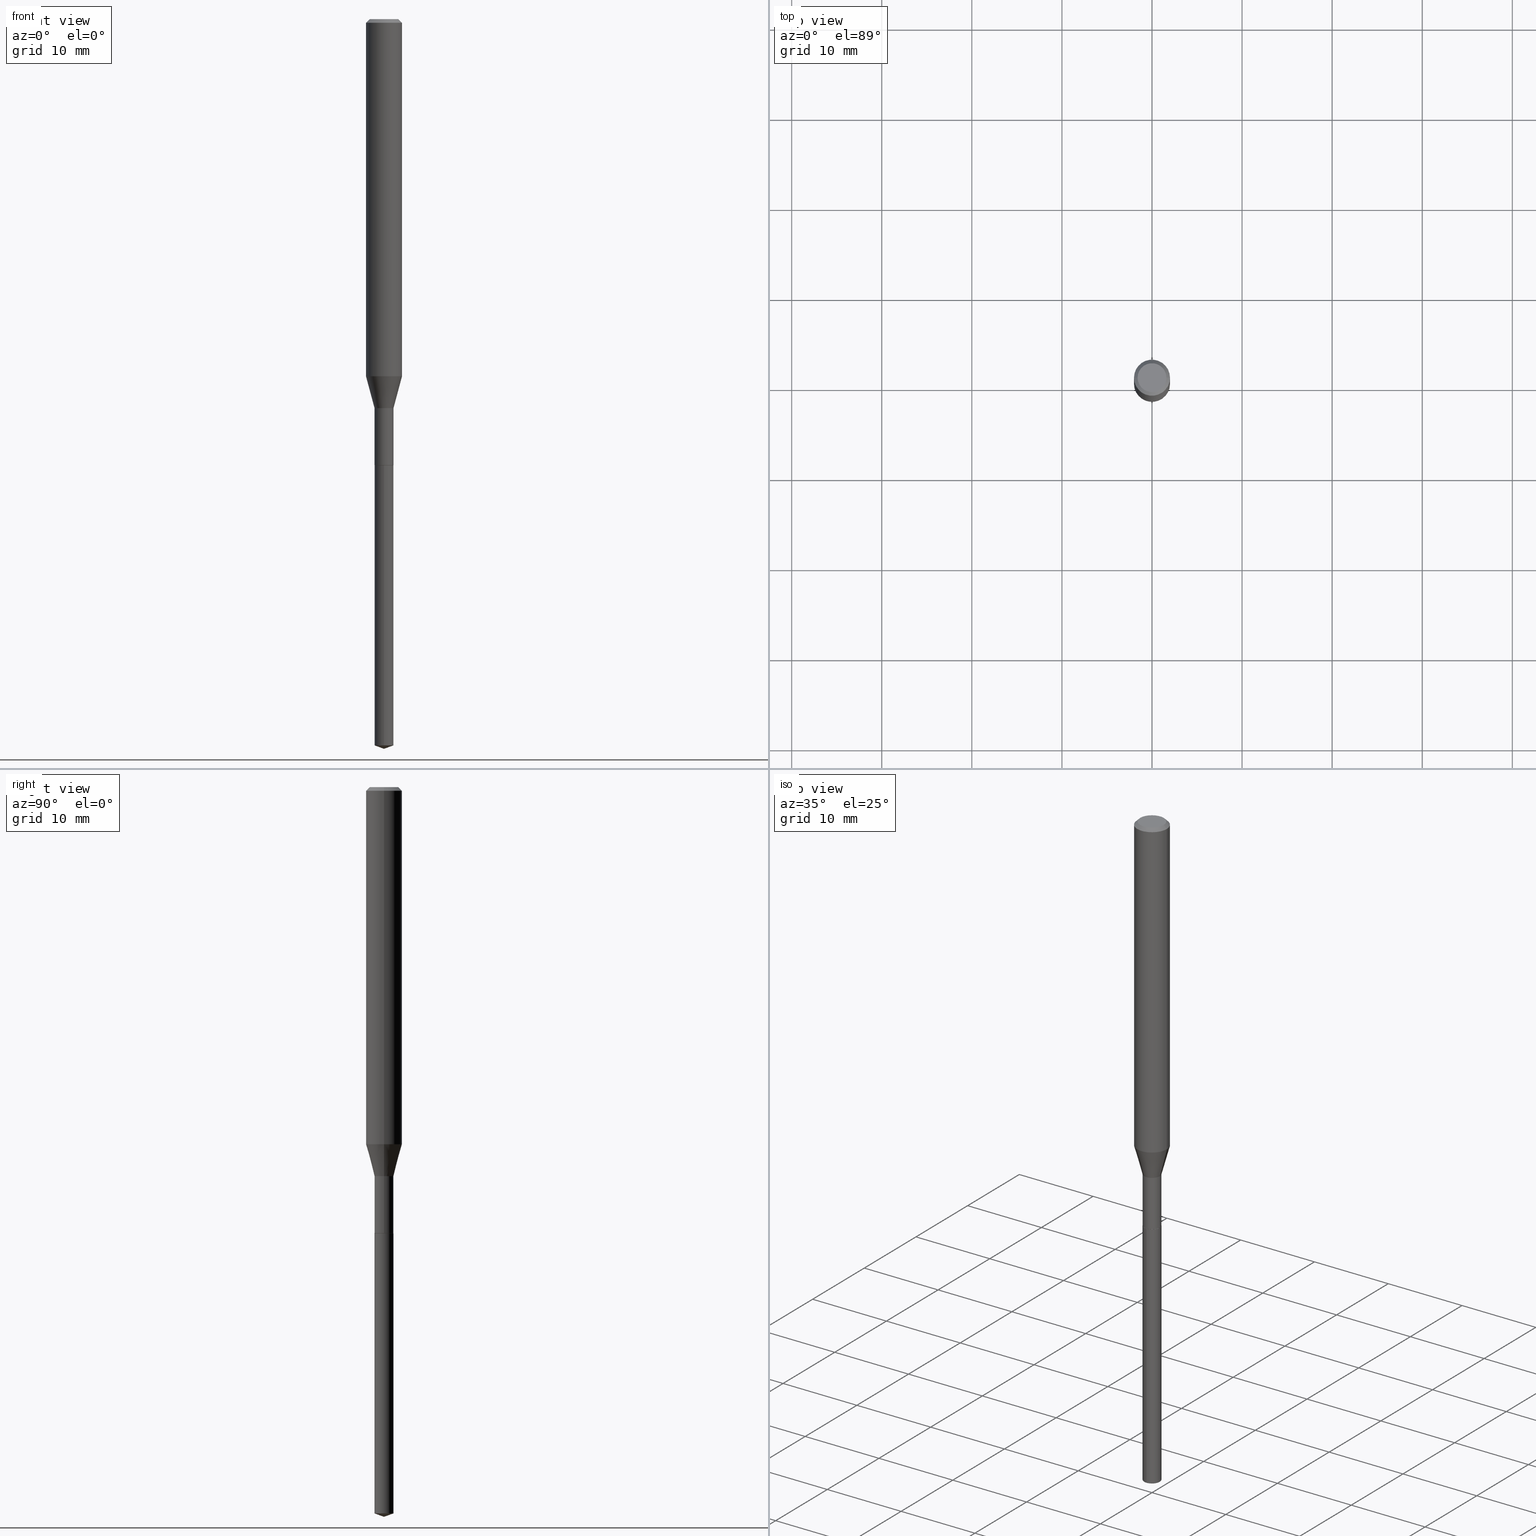
[diagram: canonical four-view strip — front | top / right | iso, engineering-drawing reading convention]
A machine part, canonical four-view strip (front | top / right | iso — engineering-drawing reading convention). The complete STEP part file that produces these views, byte-faithful:
ISO-10303-21;
HEADER;
FILE_DESCRIPTION (( 'STEP AP203' ),
    '1' );
FILE_NAME ('06042.STEP',
    '2024-04-23T19:07:26',
    ( '' ),
    ( '' ),
    'SwSTEP 2.0',
    'SolidWorks 2023',
    '' );
FILE_SCHEMA (( 'CONFIG_CONTROL_DESIGN' ));
ENDSEC;

DATA;
#1 = ORIENTED_EDGE ( 'NONE', *, *, #486, .T. ) ;
#2 = DIRECTION ( 'NONE',  ( 0.000000000000000000, 0.000000000000000000, 1.000000000000000000 ) ) ;
#3 = DIRECTION ( 'NONE',  ( -6.982962677686265922E-15, -1.000000000000000000, 3.475157955500644878E-15 ) ) ;
#4 = ORIENTED_EDGE ( 'NONE', *, *, #266, .T. ) ;
#5 = CARTESIAN_POINT ( 'NONE',  ( -0.07875000000000000056, -2.192383083753355397E-15, -0.01575000000000009032 ) ) ;
#6 = CARTESIAN_POINT ( 'NONE',  ( 4.157786064275970008E-29, -5.936216572301117394E-15, -1.700200000000000378 ) ) ;
#7 = CALENDAR_DATE ( 2024, 23, 4 ) ;
#8 = FACE_OUTER_BOUND ( 'NONE', #326, .T. ) ;
#9 = DIRECTION ( 'NONE',  ( -1.000000000000000000, 6.982962677686265922E-15, 0.000000000000000000 ) ) ;
#10 = DIRECTION ( 'NONE',  ( 1.000000000000000000, -6.982962677686255667E-15, 0.000000000000000000 ) ) ;
#11 = APPROVAL_PERSON_ORGANIZATION ( #459, #101, #311 ) ;
#12 = CALENDAR_DATE ( 2024, 23, 4 ) ;
#13 = EDGE_CURVE ( 'NONE', #178, #70, #200, .T. ) ;
#14 = ORIENTED_EDGE ( 'NONE', *, *, #95, .T. ) ;
#15 = DIRECTION ( 'NONE',  ( -2.445468806185136597E-29, 3.491481338843145583E-15, 1.000000000000000000 ) ) ;
#16 = DATE_AND_TIME ( #350, #415 ) ;
#17 = AXIS2_PLACEMENT_3D ( 'NONE', #294, #300, #383 ) ;
#18 = PERSON_AND_ORGANIZATION ( #239, #187 ) ;
#19 = AXIS2_PLACEMENT_3D ( 'NONE', #83, #225, #10 ) ;
#20 = PERSON_AND_ORGANIZATION_ROLE ( 'creator' ) ;
#21 = DIRECTION ( 'NONE',  ( 1.000000000000000000, -6.982962677686261189E-15, 0.000000000000000000 ) ) ;
#22 = CYLINDRICAL_SURFACE ( 'NONE', #453, 0.04134999999999999787 ) ;
#23 = VECTOR ( 'NONE', #175, 39.37007874015748143 ) ;
#24 = AXIS2_PLACEMENT_3D ( 'NONE', #261, #31, #315 ) ;
#25 = PRODUCT_RELATED_PRODUCT_CATEGORY ( 'detail', '', ( #285 ) ) ;
#26 = ORIENTED_EDGE ( 'NONE', *, *, #394, .F. ) ;
#27 = LINE ( 'NONE', #249, #23 ) ;
#28 = ORIENTED_EDGE ( 'NONE', *, *, #180, .F. ) ;
#29 = ADVANCED_FACE ( 'NONE', ( #51 ), #63, .T. ) ;
#30 = AXIS2_PLACEMENT_3D ( 'NONE', #234, #457, #163 ) ;
#31 = DIRECTION ( 'NONE',  ( 2.445493315655774085E-29, -3.491446239886199963E-15, -1.000000000000000000 ) ) ;
#32 = CC_DESIGN_APPROVAL ( #101, ( #143 ) ) ;
#33 = EDGE_LOOP ( 'NONE', ( #263, #404, #53, #209 ) ) ;
#34 = ORIENTED_EDGE ( 'NONE', *, *, #215, .T. ) ;
#35 = CARTESIAN_POINT ( 'NONE',  ( 0.04134999999999996317, -6.224962079023443550E-15, -1.700200000000000378 ) ) ;
#36 = DIRECTION ( 'NONE',  ( 1.000000000000000000, -6.982962677686265922E-15, 4.875905316334701673E-29 ) ) ;
#37 = FACE_OUTER_BOUND ( 'NONE', #250, .T. ) ;
#38 = CC_DESIGN_APPROVAL ( #405, ( #371 ) ) ;
#39 = ORIENTED_EDGE ( 'NONE', *, *, #466, .F. ) ;
#40 = CARTESIAN_POINT ( 'NONE',  ( 4.765729609493595098E-29, -6.804198833137522889E-15, -1.948800000000000310 ) ) ;
#41 = DIRECTION ( 'NONE',  ( -2.445468806185136877E-29, 3.491481338843145188E-15, 1.000000000000000000 ) ) ;
#42 = LINE ( 'NONE', #428, #96 ) ;
#43 = DIRECTION ( 'NONE',  ( -6.982962677686265922E-15, -1.000000000000000000, 0.000000000000000000 ) ) ;
#44 = EDGE_CURVE ( 'NONE', #207, #292, #348, .T. ) ;
#45 = EDGE_LOOP ( 'NONE', ( #157, #265, #303, #191 ) ) ;
#46 = CARTESIAN_POINT ( 'NONE',  ( -2.887455067222493906E-16, -0.04135000000001107234, -3.173949830813093342 ) ) ;
#47 = DIRECTION ( 'NONE',  ( -2.445468806185136597E-29, 3.491481338843145583E-15, 1.000000000000000000 ) ) ;
#48 = ORIENTED_EDGE ( 'NONE', *, *, #248, .F. ) ;
#49 = VECTOR ( 'NONE', #85, 39.37007874015747433 ) ;
#50 = AXIS2_PLACEMENT_3D ( 'NONE', #258, #223, #376 ) ;
#51 = FACE_OUTER_BOUND ( 'NONE', #361, .T. ) ;
#52 = EDGE_CURVE ( 'NONE', #328, #207, #483, .T. ) ;
#53 = ORIENTED_EDGE ( 'NONE', *, *, #456, .T. ) ;
#54 = PERSON_AND_ORGANIZATION_ROLE ( 'classification_officer' ) ;
#55 = APPROVAL_STATUS ( 'not_yet_approved' ) ;
#56 = AXIS2_PLACEMENT_3D ( 'NONE', #115, #146, #75 ) ;
#57 = APPROVAL_STATUS ( 'not_yet_approved' ) ;
#58 = AXIS2_PLACEMENT_3D ( 'NONE', #435, #129, #99 ) ;
#59 = ADVANCED_FACE ( 'NONE', ( #164 ), #277, .T. ) ;
#60 = EDGE_CURVE ( 'NONE', #287, #292, #255, .T. ) ;
#61 = CARTESIAN_POINT ( 'NONE',  ( 0.000000000000000000, 0.000000000000000000, 0.000000000000000000 ) ) ;
#62 = DIRECTION ( 'NONE',  ( -2.445493315655774366E-29, 3.491446239886199963E-15, 1.000000000000000000 ) ) ;
#63 = CYLINDRICAL_SURFACE ( 'NONE', #398, 0.07875000000000009770 ) ;
#64 = ADVANCED_FACE ( 'NONE', ( #337 ), #238, .T. ) ;
#65 = CARTESIAN_POINT ( 'NONE',  ( -2.887455067222794166E-16, -0.04135000000000680492, -1.948800000000000088 ) ) ;
#66 = VECTOR ( 'NONE', #160, 39.37007874015748854 ) ;
#67 = DIRECTION ( 'NONE',  ( -6.561838499445217418E-15, -0.9396926207859097602, 0.3420201433256645496 ) ) ;
#68 = EDGE_CURVE ( 'NONE', #78, #292, #246, .T. ) ;
#69 = DIRECTION ( 'NONE',  ( 1.000000000000000000, -6.982962677686267499E-15, 4.876176775795936353E-29 ) ) ;
#70 = VERTEX_POINT ( 'NONE', #298 ) ;
#71 = CLOSED_SHELL ( 'NONE', ( #111, #443, #59, #288, #198, #77, #471, #29, #64, #84, #145, #168 ) ) ;
#72 = SECURITY_CLASSIFICATION ( '', '', #279 ) ;
#73 = CARTESIAN_POINT ( 'NONE',  ( 0.04134999999999997011, -2.887455067223269455E-16, 2.016299096791618234E-30 ) ) ;
#74 = APPLICATION_CONTEXT ( 'configuration controlled 3d designs of mechanical parts and assemblies' ) ;
#75 = DIRECTION ( 'NONE',  ( -1.000000000000000000, 6.982962677686265922E-15, -4.876176775795935793E-29 ) ) ;
#76 = DIRECTION ( 'NONE',  ( 1.000000000000000000, 0.000000000000000000, 0.000000000000000000 ) ) ;
#77 = ADVANCED_FACE ( 'NONE', ( #487 ), #370, .T. ) ;
#78 = VERTEX_POINT ( 'NONE', #5 ) ;
#79 = FACE_OUTER_BOUND ( 'NONE', #270, .T. ) ;
#80 = VERTEX_POINT ( 'NONE', #46 ) ;
#81 = FACE_OUTER_BOUND ( 'NONE', #417, .T. ) ;
#82 = CIRCLE ( 'NONE', #19, 0.04134999999999996317 ) ;
#83 = CARTESIAN_POINT ( 'NONE',  ( 4.157786064275970008E-29, -5.936216572301117394E-15, -1.700200000000000378 ) ) ;
#84 = ADVANCED_FACE ( 'NONE', ( #79 ), #449, .F. ) ;
#85 = DIRECTION ( 'NONE',  ( -0.2588190451025213501, 5.211531920934551042E-15, 0.9659258262890682012 ) ) ;
#86 = CARTESIAN_POINT ( 'NONE',  ( 3.851613369741612172E-31, -5.499083108677985842E-17, -0.01575000000000009032 ) ) ;
#87 = VERTEX_POINT ( 'NONE', #220 ) ;
#88 = CARTESIAN_POINT ( 'NONE',  ( -0.07875000000000009770, 5.595524044110795906E-16, -3.873661383575743397E-30 ) ) ;
#89 = ORIENTED_EDGE ( 'NONE', *, *, #355, .T. ) ;
#90 = DIRECTION ( 'NONE',  ( 1.000000000000000000, -6.982962677686265922E-15, 0.000000000000000000 ) ) ;
#91 = CONICAL_SURFACE ( 'NONE', #151, 0.04134999999999996317, 0.2617993877991500740 ) ;
#92 = DIRECTION ( 'NONE',  ( 2.445468806185136597E-29, -3.491481338843145583E-15, -1.000000000000000000 ) ) ;
#93 = DIRECTION ( 'NONE',  ( 6.676917655467987062E-15, 0.9396926207859123137, 0.3420201433256580548 ) ) ;
#94 = DATE_TIME_ROLE ( 'classification_date' ) ;
#95 = EDGE_CURVE ( 'NONE', #287, #331, #477, .T. ) ;
#96 = VECTOR ( 'NONE', #413, 39.37007874015748143 ) ;
#97 = CC_DESIGN_APPROVAL ( #116, ( #72 ) ) ;
#98 = DIRECTION ( 'NONE',  ( -2.445493315655774085E-29, 3.491446239886199963E-15, 1.000000000000000000 ) ) ;
#99 = DIRECTION ( 'NONE',  ( -6.982962677686265922E-15, -1.000000000000000000, 3.475157955500644878E-15 ) ) ;
#100 = DIRECTION ( 'NONE',  ( -6.982962677686265922E-15, -1.000000000000000000, 6.606645692053841341E-15 ) ) ;
#101 = APPROVAL ( #194, 'UNSPECIFIED' ) ;
#102 = CARTESIAN_POINT ( 'NONE',  ( 4.765729609493595098E-29, -6.804198833137522889E-15, -1.948800000000000310 ) ) ;
#103 = EDGE_LOOP ( 'NONE', ( #378, #439, #458, #444 ) ) ;
#104 = PERSON_AND_ORGANIZATION_ROLE ( 'design_owner' ) ;
#105 = PRODUCT_DEFINITION_SHAPE ( 'NONE', 'NONE',  #371 ) ;
#106 = ORIENTED_EDGE ( 'NONE', *, *, #44, .T. ) ;
#107 = DIRECTION ( 'NONE',  ( -2.445493315655774085E-29, 3.491446239886199963E-15, 1.000000000000000000 ) ) ;
#108 = ORIENTED_EDGE ( 'NONE', *, *, #422, .T. ) ;
#109 = LINE ( 'NONE', #409, #359 ) ;
#110 = ORIENTED_EDGE ( 'NONE', *, *, #456, .F. ) ;
#111 = ADVANCED_FACE ( 'NONE', ( #8 ), #441, .T. ) ;
#112 = ORIENTED_EDGE ( 'NONE', *, *, #60, .F. ) ;
#113 = DIRECTION ( 'NONE',  ( 1.000000000000000000, -6.982962677686275388E-15, 0.000000000000000000 ) ) ;
#114 = CONICAL_SURFACE ( 'NONE', #208, 108.1684023407358097, 1.221730476396038600 ) ;
#115 = CARTESIAN_POINT ( 'NONE',  ( 4.713871149261278955E-47, -6.730158695841834933E-33, -1.927594061857933439E-18 ) ) ;
#116 = APPROVAL ( #57, 'UNSPECIFIED' ) ;
#117 = CARTESIAN_POINT ( 'NONE',  ( -0.04134999999999996317, -6.075525411147807978E-15, -1.700200000000000378 ) ) ;
#118 = DIRECTION ( 'NONE',  ( 0.7071067811865454633, -7.319954787623246579E-15, -0.7071067811865493491 ) ) ;
#119 = CARTESIAN_POINT ( 'NONE',  ( 0.07875000000000000056, -6.048991419545733705E-16, -0.01575000000000009032 ) ) ;
#120 = ORIENTED_EDGE ( 'NONE', *, *, #13, .T. ) ;
#121 = EDGE_CURVE ( 'NONE', #244, #328, #154, .T. ) ;
#122 = PLANE ( 'NONE',  #24 ) ;
#123 = CARTESIAN_POINT ( 'NONE',  ( 3.851613369741612172E-31, -5.499083108677985842E-17, -0.01575000000000009032 ) ) ;
#124 = LOCAL_TIME ( 15, 7, 26.00000000000000000, #137 ) ;
#125 = LINE ( 'NONE', #346, #66 ) ;
#126 = ORIENTED_EDGE ( 'NONE', *, *, #377, .F. ) ;
#127 = CARTESIAN_POINT ( 'NONE',  ( -0.04134999999999996317, -5.642407151064315982E-15, -1.700200000000000378 ) ) ;
#128 = ORIENTED_EDGE ( 'NONE', *, *, #401, .T. ) ;
#129 = DIRECTION ( 'NONE',  ( -2.445493315655774366E-29, 3.491446239886199963E-15, 1.000000000000000000 ) ) ;
#130 = AXIS2_PLACEMENT_3D ( 'NONE', #317, #235, #100 ) ;
#131 = AXIS2_PLACEMENT_3D ( 'NONE', #301, #2, #76 ) ;
#132 = ORIENTED_EDGE ( 'NONE', *, *, #341, .T. ) ;
#133 = DIRECTION ( 'NONE',  ( -2.445468806185136597E-29, 3.491481338843145583E-15, 1.000000000000000000 ) ) ;
#134 = COORDINATED_UNIVERSAL_TIME_OFFSET ( 5, 0, .BEHIND. ) ;
#135 = DIRECTION ( 'NONE',  ( -2.445468806185136597E-29, 3.491481338843145583E-15, 1.000000000000000000 ) ) ;
#136 = EDGE_CURVE ( 'NONE', #207, #328, #321, .T. ) ;
#137 = COORDINATED_UNIVERSAL_TIME_OFFSET ( 5, 0, .BEHIND. ) ;
#138 = PERSON_AND_ORGANIZATION ( #239, #187 ) ;
#139 = CIRCLE ( 'NONE', #260, 0.06300000000000000044 ) ;
#140 = CARTESIAN_POINT ( 'NONE',  ( 4.765729609493595098E-29, -6.804198833137522889E-15, -1.948800000000000310 ) ) ;
#141 = CARTESIAN_POINT ( 'NONE',  ( 4.765729609493595098E-29, -6.804198833137522889E-15, -1.948800000000000310 ) ) ;
#142 = ORIENTED_EDGE ( 'NONE', *, *, #136, .T. ) ;
#143 = PRODUCT_DEFINITION_FORMATION_WITH_SPECIFIED_SOURCE ( 'ANY', '', #285, .NOT_KNOWN. ) ;
#144 = CARTESIAN_POINT ( 'NONE',  ( 7.798582655513506422E-29, -1.113435886069168424E-14, -3.189000000000000501 ) ) ;
#145 = ADVANCED_FACE ( 'NONE', ( #81 ), #460, .F. ) ;
#146 = DIRECTION ( 'NONE',  ( 2.438088387897960049E-29, -3.491481338843145188E-15, -1.000000000000000000 ) ) ;
#147 = EDGE_LOOP ( 'NONE', ( #454, #1, #4, #189 ) ) ;
#148 = CC_DESIGN_PERSON_AND_ORGANIZATION_ASSIGNMENT ( #349, #104, ( #285 ) ) ;
#149 = ORIENTED_EDGE ( 'NONE', *, *, #401, .F. ) ;
#150 = AXIS2_PLACEMENT_3D ( 'NONE', #430, #15, #240 ) ;
#151 = AXIS2_PLACEMENT_3D ( 'NONE', #6, #155, #221 ) ;
#152 = ORIENTED_EDGE ( 'NONE', *, *, #341, .F. ) ;
#153 = EDGE_CURVE ( 'NONE', #169, #87, #42, .T. ) ;
#154 = LINE ( 'NONE', #127, #49 ) ;
#155 = DIRECTION ( 'NONE',  ( -2.445468806185136597E-29, 3.491481338843145583E-15, 1.000000000000000000 ) ) ;
#156 = FACE_OUTER_BOUND ( 'NONE', #33, .T. ) ;
#157 = ORIENTED_EDGE ( 'NONE', *, *, #304, .T. ) ;
#158 = AXIS2_PLACEMENT_3D ( 'NONE', #482, #281, #437 ) ;
#159 = CC_DESIGN_SECURITY_CLASSIFICATION ( #72, ( #143 ) ) ;
#160 = DIRECTION ( 'NONE',  ( -0.7071067811865454633, 2.468850131082235761E-15, -0.7071067811865493491 ) ) ;
#161 = VERTEX_POINT ( 'NONE', #237 ) ;
#162 = UNCERTAINTY_MEASURE_WITH_UNIT (LENGTH_MEASURE( 1.000000000000000082E-05 ), #340, 'distance_accuracy_value', 'NONE');
#163 = DIRECTION ( 'NONE',  ( 1.000000000000000000, -6.982962677686269077E-15, 0.000000000000000000 ) ) ;
#164 = FACE_OUTER_BOUND ( 'NONE', #343, .T. ) ;
#165 = PERSON_AND_ORGANIZATION ( #239, #187 ) ;
#166 = VECTOR ( 'NONE', #107, 39.37007874015748143 ) ;
#167 = DATE_AND_TIME ( #12, #314 ) ;
#168 = ADVANCED_FACE ( 'NONE', ( #418 ), #447, .T. ) ;
#169 = VERTEX_POINT ( 'NONE', #214 ) ;
#170 = LINE ( 'NONE', #396, #166 ) ;
#171 = AXIS2_PLACEMENT_3D ( 'NONE', #267, #464, #423 ) ;
#172 = DIRECTION ( 'NONE',  ( 1.000000000000000000, -6.982962677686261189E-15, 0.000000000000000000 ) ) ;
#173 = CONICAL_SURFACE ( 'NONE', #58, 108.1684023407358097, 1.221730476396038600 ) ;
#174 = ORIENTED_EDGE ( 'NONE', *, *, #153, .T. ) ;
#175 = DIRECTION ( 'NONE',  ( -2.445468806185136877E-29, 3.491481338843145188E-15, 1.000000000000000000 ) ) ;
#176 = EDGE_LOOP ( 'NONE', ( #488, #445, #126 ) ) ;
#177 = DIRECTION ( 'NONE',  ( -2.445493315655774366E-29, 3.491446239886199963E-15, 1.000000000000000000 ) ) ;
#178 = VERTEX_POINT ( 'NONE', #65 ) ;
#179 = VECTOR ( 'NONE', #278, 39.37007874015748143 ) ;
#180 = EDGE_CURVE ( 'NONE', #368, #70, #170, .T. ) ;
#181 = VECTOR ( 'NONE', #93, 39.37007874015748143 ) ;
#182 = EDGE_CURVE ( 'NONE', #80, #178, #358, .T. ) ;
#183 = ORIENTED_EDGE ( 'NONE', *, *, #136, .F. ) ;
#184 =( NAMED_UNIT ( * ) SI_UNIT ( $, .STERADIAN. ) SOLID_ANGLE_UNIT ( ) );
#185 = CC_DESIGN_PERSON_AND_ORGANIZATION_ASSIGNMENT ( #165, #54, ( #72 ) ) ;
#186 = DIRECTION ( 'NONE',  ( 1.000000000000000000, -6.982962677686261189E-15, 0.000000000000000000 ) ) ;
#187 = ORGANIZATION ( 'UNSPECIFIED', 'UNSPECIFIED', '' ) ;
#188 = CARTESIAN_POINT ( 'NONE',  ( 3.851613369741612172E-31, -5.499083108677985842E-17, -0.01575000000000009032 ) ) ;
#189 = ORIENTED_EDGE ( 'NONE', *, *, #429, .F. ) ;
#190 = DIRECTION ( 'NONE',  ( -2.445468806185136597E-29, 3.491481338843145583E-15, 1.000000000000000000 ) ) ;
#191 = ORIENTED_EDGE ( 'NONE', *, *, #266, .F. ) ;
#192 = AXIS2_PLACEMENT_3D ( 'NONE', #412, #420, #9 ) ;
#193 = CONICAL_SURFACE ( 'NONE', #330, 0.07875000000000000056, 0.7853981633974456145 ) ;
#194 = APPROVAL_STATUS ( 'not_yet_approved' ) ;
#195 = CC_DESIGN_DATE_AND_TIME_ASSIGNMENT ( #16, #94, ( #72 ) ) ;
#196 = CARTESIAN_POINT ( 'NONE',  ( 7.798679021295051767E-29, -1.113422205899709365E-14, -3.189000000000000501 ) ) ;
#197 = CALENDAR_DATE ( 2024, 23, 4 ) ;
#198 = ADVANCED_FACE ( 'NONE', ( #211 ), #243, .T. ) ;
#199 = AXIS2_PLACEMENT_3D ( 'NONE', #188, #407, #342 ) ;
#200 = CIRCLE ( 'NONE', #130, 0.04134999999999999787 ) ;
#201 = CIRCLE ( 'NONE', #262, 0.04084999999999999742 ) ;
#202 = APPROVAL_DATE_TIME ( #242, #116 ) ;
#203 = CARTESIAN_POINT ( 'NONE',  ( -0.06300000000000000044, 4.674220642376242452E-16, -3.855188123719040041E-18 ) ) ;
#204 = DIRECTION ( 'NONE',  ( -2.445468806185136597E-29, 3.491481338843145583E-15, 1.000000000000000000 ) ) ;
#205 = APPROVAL_DATE_TIME ( #410, #101 ) ;
#206 = FACE_OUTER_BOUND ( 'NONE', #400, .T. ) ;
#207 = VERTEX_POINT ( 'NONE', #320 ) ;
#208 = AXIS2_PLACEMENT_3D ( 'NONE', #291, #299, #3 ) ;
#209 = ORIENTED_EDGE ( 'NONE', *, *, #422, .F. ) ;
#210 = MANIFOLD_SOLID_BREP ( 'Body-Move/Copy2[1]', #345 ) ;
#211 = FACE_OUTER_BOUND ( 'NONE', #45, .T. ) ;
#212 = ORIENTED_EDGE ( 'NONE', *, *, #304, .F. ) ;
#213 = EDGE_LOOP ( 'NONE', ( #406, #307, #472, #366 ) ) ;
#214 = CARTESIAN_POINT ( 'NONE',  ( 0.04084999999999999742, -7.089452858521006827E-15, -1.948800000000000310 ) ) ;
#215 = EDGE_CURVE ( 'NONE', #70, #178, #251, .T. ) ;
#216 = ORIENTED_EDGE ( 'NONE', *, *, #353, .T. ) ;
#217 = ADVANCED_FACE ( 'NONE', ( #284 ), #365, .T. ) ;
#218 = FACE_OUTER_BOUND ( 'NONE', #462, .T. ) ;
#219 = EDGE_CURVE ( 'NONE', #419, #80, #440, .T. ) ;
#220 = CARTESIAN_POINT ( 'NONE',  ( 0.04134999999999998399, -7.091198599190429120E-15, -1.948300000000000365 ) ) ;
#221 = DIRECTION ( 'NONE',  ( 1.000000000000000000, -6.982962677686255667E-15, 0.000000000000000000 ) ) ;
#222 = CARTESIAN_POINT ( 'NONE',  ( 9.427742298522557911E-47, -1.346031739168366987E-32, -3.855188123715866879E-18 ) ) ;
#223 = DIRECTION ( 'NONE',  ( -2.445468806185136597E-29, 3.491481338843145583E-15, 1.000000000000000000 ) ) ;
#224 = CIRCLE ( 'NONE', #442, 0.04134999999999996317 ) ;
#225 = DIRECTION ( 'NONE',  ( -2.445468806185136597E-29, 3.491481338843145583E-15, 1.000000000000000000 ) ) ;
#226 = ORIENTED_EDGE ( 'NONE', *, *, #121, .T. ) ;
#227 = DIRECTION ( 'NONE',  ( -2.445468806185136597E-29, 3.491481338843145583E-15, 1.000000000000000000 ) ) ;
#228 = DIRECTION ( 'NONE',  ( -2.445493315655774366E-29, 3.491446239886199963E-15, 1.000000000000000000 ) ) ;
#229 = ORIENTED_EDGE ( 'NONE', *, *, #364, .F. ) ;
#230 = EDGE_CURVE ( 'NONE', #231, #244, #27, .T. ) ;
#231 = VERTEX_POINT ( 'NONE', #399 ) ;
#232 = EDGE_CURVE ( 'NONE', #385, #207, #302, .T. ) ;
#233 = AXIS2_PLACEMENT_3D ( 'NONE', #140, #177, #481 ) ;
#234 = CARTESIAN_POINT ( 'NONE',  ( 3.816450706921478989E-29, -5.448880145242093007E-15, -1.560621299796923767 ) ) ;
#235 = DIRECTION ( 'NONE',  ( -2.445493315655774366E-29, 3.491446239886199963E-15, 1.000000000000000000 ) ) ;
#236 = SHAPE_DEFINITION_REPRESENTATION ( #105, #490 ) ;
#237 = CARTESIAN_POINT ( 'NONE',  ( -0.04084999999999999742, -6.511292898405410386E-15, -1.948800000000000310 ) ) ;
#238 = CONICAL_SURFACE ( 'NONE', #192, 0.07875000000000000056, 0.7853981633974456145 ) ;
#239 = PERSON ( 'UNSPECIFIED', 'UNSPECIFIED', 'UNSPECIFIED', ('UNSPECIFIED'), ('UNSPECIFIED'), ('UNSPECIFIED') ) ;
#240 = DIRECTION ( 'NONE',  ( 1.000000000000000000, -6.982962677686269077E-15, 0.000000000000000000 ) ) ;
#241 = DESIGN_CONTEXT ( 'detailed design', #297, 'design' ) ;
#242 = DATE_AND_TIME ( #431, #124 ) ;
#243 = CYLINDRICAL_SURFACE ( 'NONE', #286, 0.04134999999999997011 ) ;
#244 = VERTEX_POINT ( 'NONE', #117 ) ;
#245 = APPLICATION_PROTOCOL_DEFINITION ( 'international standard', 'config_control_design', 1994, #297 ) ;
#246 = CIRCLE ( 'NONE', #199, 0.07875000000000000056 ) ;
#247 = LOCAL_TIME ( 15, 7, 26.00000000000000000, #134 ) ;
#248 = EDGE_CURVE ( 'NONE', #161, #231, #109, .T. ) ;
#249 = CARTESIAN_POINT ( 'NONE',  ( -0.04134999999999997011, 2.938094212368012145E-16, -2.033979659820402051E-30 ) ) ;
#250 = EDGE_LOOP ( 'NONE', ( #229, #363, #39 ) ) ;
#251 = CIRCLE ( 'NONE', #233, 0.04134999999999999787 ) ;
#252 = ORIENTED_EDGE ( 'NONE', *, *, #353, .F. ) ;
#253 = CIRCLE ( 'NONE', #295, 0.04084999999999999742 ) ;
#254 = DIRECTION ( 'NONE',  ( -0.7071067811866078578, 7.493145998870571886E-15, 0.7071067811864871766 ) ) ;
#255 = LINE ( 'NONE', #257, #467 ) ;
#256 = LENGTH_MEASURE_WITH_UNIT ( LENGTH_MEASURE( 0.02539999999999999897 ), #296 );
#257 = CARTESIAN_POINT ( 'NONE',  ( 0.07875000000000000056, -5.952550484112880131E-16, -0.01575000000000009032 ) ) ;
#258 = CARTESIAN_POINT ( 'NONE',  ( 4.764506875090502296E-29, -6.802453092468101385E-15, -1.948300000000000365 ) ) ;
#259 = DIRECTION ( 'NONE',  ( -2.445468806185136597E-29, 3.491481338843145583E-15, 1.000000000000000000 ) ) ;
#260 = AXIS2_PLACEMENT_3D ( 'NONE', #271, #356, #390 ) ;
#261 = CARTESIAN_POINT ( 'NONE',  ( 4.765729609493595098E-29, -6.804198833137522889E-15, -1.948800000000000310 ) ) ;
#262 = AXIS2_PLACEMENT_3D ( 'NONE', #102, #438, #172 ) ;
#263 = ORIENTED_EDGE ( 'NONE', *, *, #95, .F. ) ;
#264 = MECHANICAL_CONTEXT ( 'NONE', #74, 'mechanical' ) ;
#265 = ORIENTED_EDGE ( 'NONE', *, *, #230, .T. ) ;
#266 = EDGE_CURVE ( 'NONE', #87, #385, #489, .T. ) ;
#267 = CARTESIAN_POINT ( 'NONE',  ( 4.765729609493595098E-29, -6.804198833137522889E-15, -1.948800000000000310 ) ) ;
#268 = DIRECTION ( 'NONE',  ( 1.000000000000000000, -6.982962677686255667E-15, 0.000000000000000000 ) ) ;
#269 = EDGE_LOOP ( 'NONE', ( #120, #34 ) ) ;
#270 = EDGE_LOOP ( 'NONE', ( #216, #14 ) ) ;
#271 = CARTESIAN_POINT ( 'NONE',  ( 9.427742298522557911E-47, -1.346031739168366987E-32, -3.855188123715866879E-18 ) ) ;
#272 = COORDINATED_UNIVERSAL_TIME_OFFSET ( 5, 0, .BEHIND. ) ;
#273 =( GEOMETRIC_REPRESENTATION_CONTEXT ( 3 ) GLOBAL_UNCERTAINTY_ASSIGNED_CONTEXT ( ( #162 ) ) GLOBAL_UNIT_ASSIGNED_CONTEXT ( ( #340, #455, #184 ) ) REPRESENTATION_CONTEXT ( 'NONE', 'WORKASPACE' ) );
#274 = LINE ( 'NONE', #196, #181 ) ;
#275 = ORIENTED_EDGE ( 'NONE', *, *, #394, .T. ) ;
#276 = DIRECTION ( 'NONE',  ( 1.000000000000000000, -6.982962677686267499E-15, 4.876176775795935232E-29 ) ) ;
#277 = CYLINDRICAL_SURFACE ( 'NONE', #452, 0.07875000000000009770 ) ;
#278 = DIRECTION ( 'NONE',  ( -2.445468806185136877E-29, 3.491481338843145188E-15, 1.000000000000000000 ) ) ;
#279 = SECURITY_CLASSIFICATION_LEVEL ( 'unclassified' ) ;
#280 = FACE_OUTER_BOUND ( 'NONE', #176, .T. ) ;
#281 = DIRECTION ( 'NONE',  ( -2.445493315655774366E-29, 3.491446239886199963E-15, 1.000000000000000000 ) ) ;
#282 = DIRECTION ( 'NONE',  ( -6.982962677686265922E-15, -1.000000000000000000, 0.000000000000000000 ) ) ;
#283 = CC_DESIGN_DATE_AND_TIME_ASSIGNMENT ( #167, #316, ( #371 ) ) ;
#284 = FACE_OUTER_BOUND ( 'NONE', #103, .T. ) ;
#285 = PRODUCT ( '06042', '06042', '', ( #264 ) ) ;
#286 = AXIS2_PLACEMENT_3D ( 'NONE', #61, #204, #69 ) ;
#287 = VERTEX_POINT ( 'NONE', #402 ) ;
#288 = ADVANCED_FACE ( 'NONE', ( #218 ), #91, .T. ) ;
#289 = AXIS2_PLACEMENT_3D ( 'NONE', #446, #408, #113 ) ;
#290 = EDGE_LOOP ( 'NONE', ( #48, #132, #174, #375 ) ) ;
#291 = CARTESIAN_POINT ( 'NONE',  ( -8.848063397632673710E-28, 1.263242229215020686E-13, 36.18107874015748138 ) ) ;
#292 = VERTEX_POINT ( 'NONE', #119 ) ;
#293 = VECTOR ( 'NONE', #339, 39.37007874015747433 ) ;
#294 = CARTESIAN_POINT ( 'NONE',  ( 0.000000000000000000, 0.000000000000000000, 0.000000000000000000 ) ) ;
#295 = AXIS2_PLACEMENT_3D ( 'NONE', #309, #133, #21 ) ;
#296 =( LENGTH_UNIT ( ) NAMED_UNIT ( * ) SI_UNIT ( $, .METRE. ) );
#297 = APPLICATION_CONTEXT ( 'configuration controlled 3d designs of mechanical parts and assemblies' ) ;
#298 = CARTESIAN_POINT ( 'NONE',  ( 2.938094212368791638E-16, 0.04134999999999319775, -1.948800000000000532 ) ) ;
#299 = DIRECTION ( 'NONE',  ( -2.445493315655774366E-29, 3.491446239886199963E-15, 1.000000000000000000 ) ) ;
#300 = DIRECTION ( 'NONE',  ( -2.445468806185136597E-29, 3.491481338843145583E-15, 1.000000000000000000 ) ) ;
#301 = CARTESIAN_POINT ( 'NONE',  ( 0.000000000000000000, 0.000000000000000000, 0.000000000000000000 ) ) ;
#302 = LINE ( 'NONE', #35, #293 ) ;
#303 = ORIENTED_EDGE ( 'NONE', *, *, #355, .F. ) ;
#304 = EDGE_CURVE ( 'NONE', #87, #231, #433, .T. ) ;
#305 = APPLICATION_PROTOCOL_DEFINITION ( 'international standard', 'config_control_design', 1994, #74 ) ;
#306 = AXIS2_PLACEMENT_3D ( 'NONE', #40, #259, #186 ) ;
#307 = ORIENTED_EDGE ( 'NONE', *, *, #429, .T. ) ;
#308 = ORIENTED_EDGE ( 'NONE', *, *, #215, .F. ) ;
#309 = CARTESIAN_POINT ( 'NONE',  ( 4.765729609493595098E-29, -6.804198833137522889E-15, -1.948800000000000310 ) ) ;
#310 = CARTESIAN_POINT ( 'NONE',  ( 0.07875000000000009770, -5.499083108677942332E-16, 3.839989210939303921E-30 ) ) ;
#311 = APPROVAL_ROLE ( '' ) ;
#312 = DIRECTION ( 'NONE',  ( -2.445468806185136597E-29, 3.491481338843145583E-15, 1.000000000000000000 ) ) ;
#313 = APPROVAL_ROLE ( '' ) ;
#314 = LOCAL_TIME ( 15, 7, 26.00000000000000000, #395 ) ;
#315 = DIRECTION ( 'NONE',  ( 6.982962677686265922E-15, 1.000000000000000000, -3.491446239886199963E-15 ) ) ;
#316 = DATE_TIME_ROLE ( 'creation_date' ) ;
#317 = CARTESIAN_POINT ( 'NONE',  ( 4.765729609493595098E-29, -6.804198833137522889E-15, -1.948800000000000310 ) ) ;
#318 = PERSON_AND_ORGANIZATION_ROLE ( 'design_supplier' ) ;
#319 = ADVANCED_FACE ( 'NONE', ( #451 ), #122, .F. ) ;
#320 = CARTESIAN_POINT ( 'NONE',  ( 0.07875000000000019484, -5.998788456109887930E-15, -1.560621299796923767 ) ) ;
#321 = CIRCLE ( 'NONE', #30, 0.07875000000000019484 ) ;
#322 = AXIS2_PLACEMENT_3D ( 'NONE', #388, #190, #268 ) ;
#323 = CC_DESIGN_PERSON_AND_ORGANIZATION_ASSIGNMENT ( #474, #476, ( #143 ) ) ;
#324 = LINE ( 'NONE', #88, #403 ) ;
#325 = ORIENTED_EDGE ( 'NONE', *, *, #466, .T. ) ;
#326 = EDGE_LOOP ( 'NONE', ( #275, #369, #212, #332 ) ) ;
#327 = PERSON_AND_ORGANIZATION ( #239, #187 ) ;
#328 = VERTEX_POINT ( 'NONE', #475 ) ;
#329 = AXIS2_PLACEMENT_3D ( 'NONE', #222, #372, #36 ) ;
#330 = AXIS2_PLACEMENT_3D ( 'NONE', #123, #92, #461 ) ;
#331 = VERTEX_POINT ( 'NONE', #203 ) ;
#332 = ORIENTED_EDGE ( 'NONE', *, *, #153, .F. ) ;
#333 = ORIENTED_EDGE ( 'NONE', *, *, #68, .T. ) ;
#334 = DIRECTION ( 'NONE',  ( -2.445468806185136877E-29, 3.491481338843145188E-15, 1.000000000000000000 ) ) ;
#335 = ADVANCED_FACE ( 'NONE', ( #280 ), #173, .T. ) ;
#336 = ORIENTED_EDGE ( 'NONE', *, *, #44, .F. ) ;
#337 = FACE_OUTER_BOUND ( 'NONE', #362, .T. ) ;
#338 = AXIS2_PLACEMENT_3D ( 'NONE', #344, #228, #43 ) ;
#339 = DIRECTION ( 'NONE',  ( 0.2588190451025213501, 1.565188264969621968E-15, 0.9659258262890682012 ) ) ;
#340 =( CONVERSION_BASED_UNIT ( 'INCH', #256 ) LENGTH_UNIT ( ) NAMED_UNIT ( #389 ) );
#341 = EDGE_CURVE ( 'NONE', #161, #169, #253, .T. ) ;
#342 = DIRECTION ( 'NONE',  ( 1.000000000000000000, -6.982962677686265922E-15, 0.000000000000000000 ) ) ;
#343 = EDGE_LOOP ( 'NONE', ( #142, #128, #110, #336 ) ) ;
#344 = CARTESIAN_POINT ( 'NONE',  ( 7.761825331423815897E-29, -1.108174360322711029E-14, -3.173949830813093342 ) ) ;
#345 = CLOSED_SHELL ( 'NONE', ( #217, #335, #480, #393, #319 ) ) ;
#346 = CARTESIAN_POINT ( 'NONE',  ( -0.07875000000000000056, 4.949174797810136167E-16, -0.01575000000000009032 ) ) ;
#347 = LOCAL_TIME ( 15, 7, 26.00000000000000000, #272 ) ;
#348 = LINE ( 'NONE', #310, #179 ) ;
#349 = PERSON_AND_ORGANIZATION ( #239, #187 ) ;
#350 = CALENDAR_DATE ( 2024, 23, 4 ) ;
#351 = VECTOR ( 'NONE', #67, 39.37007874015748854 ) ;
#352 = CARTESIAN_POINT ( 'NONE',  ( 2.938094212368789666E-16, 0.04134999999998890952, -3.173949830813093342 ) ) ;
#353 = EDGE_CURVE ( 'NONE', #331, #287, #139, .T. ) ;
#354 = CARTESIAN_POINT ( 'NONE',  ( 0.000000000000000000, 0.000000000000000000, 0.000000000000000000 ) ) ;
#355 = EDGE_CURVE ( 'NONE', #385, #244, #224, .T. ) ;
#356 = DIRECTION ( 'NONE',  ( -2.445468806185136597E-29, 3.491481338843145583E-15, 1.000000000000000000 ) ) ;
#357 = CARTESIAN_POINT ( 'NONE',  ( 0.04134999999999996317, -6.224962079023443550E-15, -1.700200000000000378 ) ) ;
#358 = LINE ( 'NONE', #434, #432 ) ;
#359 = VECTOR ( 'NONE', #254, 39.37007874015748143 ) ;
#360 = CIRCLE ( 'NONE', #478, 0.07875000000000000056 ) ;
#361 = EDGE_LOOP ( 'NONE', ( #149, #485, #106, #382 ) ) ;
#362 = EDGE_LOOP ( 'NONE', ( #112, #252, #108, #333 ) ) ;
#363 = ORIENTED_EDGE ( 'NONE', *, *, #219, .T. ) ;
#364 = EDGE_CURVE ( 'NONE', #419, #368, #274, .T. ) ;
#365 = CYLINDRICAL_SURFACE ( 'NONE', #158, 0.04134999999999999787 ) ;
#366 = ORIENTED_EDGE ( 'NONE', *, *, #52, .F. ) ;
#367 = CIRCLE ( 'NONE', #448, 0.04134999999999999787 ) ;
#368 = VERTEX_POINT ( 'NONE', #352 ) ;
#369 = ORIENTED_EDGE ( 'NONE', *, *, #248, .T. ) ;
#370 = CYLINDRICAL_SURFACE ( 'NONE', #17, 0.04134999999999997011 ) ;
#371 = PRODUCT_DEFINITION ( 'UNKNOWN', '', #143, #241 ) ;
#372 = DIRECTION ( 'NONE',  ( -2.445468806185136597E-29, 3.491481338843145583E-15, 1.000000000000000000 ) ) ;
#373 = DIRECTION ( 'NONE',  ( 1.000000000000000000, -6.982962677686267499E-15, 4.876176775795935232E-29 ) ) ;
#374 = CIRCLE ( 'NONE', #338, 0.04134999999999999787 ) ;
#375 = ORIENTED_EDGE ( 'NONE', *, *, #486, .F. ) ;
#376 = DIRECTION ( 'NONE',  ( 1.000000000000000000, -6.982962677686275388E-15, 0.000000000000000000 ) ) ;
#377 = EDGE_CURVE ( 'NONE', #80, #368, #367, .T. ) ;
#378 = ORIENTED_EDGE ( 'NONE', *, *, #377, .T. ) ;
#379 = MANIFOLD_SOLID_BREP ( 'Body-Move/Copy2[2]', #71 ) ;
#380 = DIRECTION ( 'NONE',  ( 1.000000000000000000, -6.982962677686261189E-15, 0.000000000000000000 ) ) ;
#381 = FACE_OUTER_BOUND ( 'NONE', #213, .T. ) ;
#382 = ORIENTED_EDGE ( 'NONE', *, *, #68, .F. ) ;
#383 = DIRECTION ( 'NONE',  ( 1.000000000000000000, -6.982962677686267499E-15, 4.876176775795936353E-29 ) ) ;
#384 = COORDINATED_UNIVERSAL_TIME_OFFSET ( 5, 0, .BEHIND. ) ;
#385 = VERTEX_POINT ( 'NONE', #357 ) ;
#386 = APPROVAL_DATE_TIME ( #470, #405 ) ;
#387 = CARTESIAN_POINT ( 'NONE',  ( 4.765729609493595098E-29, -6.804198833137522889E-15, -1.948800000000000310 ) ) ;
#388 = CARTESIAN_POINT ( 'NONE',  ( 4.157786064275970008E-29, -5.936216572301117394E-15, -1.700200000000000378 ) ) ;
#389 = DIMENSIONAL_EXPONENTS ( 1.000000000000000000, 0.000000000000000000, 0.000000000000000000, 0.000000000000000000, 0.000000000000000000, 0.000000000000000000, 0.000000000000000000 ) ;
#390 = DIRECTION ( 'NONE',  ( 1.000000000000000000, -6.982962677686265922E-15, 4.875905316334701673E-29 ) ) ;
#391 = CARTESIAN_POINT ( 'NONE',  ( 7.761825331423815897E-29, -1.108174360322711029E-14, -3.173949830813093342 ) ) ;
#392 = CONICAL_SURFACE ( 'NONE', #322, 0.04134999999999996317, 0.2617993877991500740 ) ;
#393 = ADVANCED_FACE ( 'NONE', ( #206 ), #22, .T. ) ;
#394 = EDGE_CURVE ( 'NONE', #169, #161, #201, .T. ) ;
#395 = COORDINATED_UNIVERSAL_TIME_OFFSET ( 5, 0, .BEHIND. ) ;
#396 = CARTESIAN_POINT ( 'NONE',  ( 2.938094212368490392E-16, 0.04134999999999319775, -1.948800000000000532 ) ) ;
#397 = DIRECTION ( 'NONE',  ( -6.982962677686265922E-15, -1.000000000000000000, 6.606645692053841341E-15 ) ) ;
#398 = AXIS2_PLACEMENT_3D ( 'NONE', #473, #135, #276 ) ;
#399 = CARTESIAN_POINT ( 'NONE',  ( -0.04134999999999998399, -6.075525411147807978E-15, -1.948300000000000365 ) ) ;
#400 = EDGE_LOOP ( 'NONE', ( #28, #325, #411, #308 ) ) ;
#401 = EDGE_CURVE ( 'NONE', #328, #78, #324, .T. ) ;
#402 = CARTESIAN_POINT ( 'NONE',  ( 0.06300000000000000044, -5.137332111354472216E-16, -3.855188123712532709E-18 ) ) ;
#403 = VECTOR ( 'NONE', #41, 39.37007874015748143 ) ;
#404 = ORIENTED_EDGE ( 'NONE', *, *, #60, .T. ) ;
#405 = APPROVAL ( #55, 'UNSPECIFIED' ) ;
#406 = ORIENTED_EDGE ( 'NONE', *, *, #121, .F. ) ;
#407 = DIRECTION ( 'NONE',  ( -2.445468806185136597E-29, 3.491481338843145583E-15, 1.000000000000000000 ) ) ;
#408 = DIRECTION ( 'NONE',  ( -2.445468806185136597E-29, 3.491481338843145583E-15, 1.000000000000000000 ) ) ;
#409 = CARTESIAN_POINT ( 'NONE',  ( -0.04084999999999999742, -6.513942125579521587E-15, -1.948800000000000310 ) ) ;
#410 = DATE_AND_TIME ( #7, #347 ) ;
#411 = ORIENTED_EDGE ( 'NONE', *, *, #182, .T. ) ;
#412 = CARTESIAN_POINT ( 'NONE',  ( 3.851613369741612172E-31, -5.499083108677985842E-17, -0.01575000000000009032 ) ) ;
#413 = DIRECTION ( 'NONE',  ( 0.7071067811866078578, -2.468850131082888544E-15, 0.7071067811864871766 ) ) ;
#414 = AXIS2_PLACEMENT_3D ( 'NONE', #387, #227, #380 ) ;
#415 = LOCAL_TIME ( 15, 7, 26.00000000000000000, #384 ) ;
#416 = CARTESIAN_POINT ( 'NONE',  ( 7.798678183626266097E-29, -1.113422205899709365E-14, -3.189000000000000501 ) ) ;
#417 = EDGE_LOOP ( 'NONE', ( #26, #152 ) ) ;
#418 = FACE_OUTER_BOUND ( 'NONE', #290, .T. ) ;
#419 = VERTEX_POINT ( 'NONE', #416 ) ;
#420 = DIRECTION ( 'NONE',  ( 2.445468806185136597E-29, -3.491481338843145583E-15, -1.000000000000000000 ) ) ;
#421 = ORIENTED_EDGE ( 'NONE', *, *, #232, .F. ) ;
#422 = EDGE_CURVE ( 'NONE', #331, #78, #125, .T. ) ;
#423 = DIRECTION ( 'NONE',  ( 1.000000000000000000, -6.982962677686265922E-15, 4.876176775795935793E-29 ) ) ;
#424 = CARTESIAN_POINT ( 'NONE',  ( 4.157786064275970008E-29, -5.936216572301117394E-15, -1.700200000000000378 ) ) ;
#425 = VECTOR ( 'NONE', #334, 39.37007874015748143 ) ;
#426 = CIRCLE ( 'NONE', #289, 0.04134999999999998399 ) ;
#427 = CC_DESIGN_PERSON_AND_ORGANIZATION_ASSIGNMENT ( #436, #318, ( #143 ) ) ;
#428 = CARTESIAN_POINT ( 'NONE',  ( 0.04084999999999999742, -7.089452858521006827E-15, -1.948800000000000310 ) ) ;
#429 = EDGE_CURVE ( 'NONE', #244, #385, #82, .T. ) ;
#430 = CARTESIAN_POINT ( 'NONE',  ( 3.816450706921478989E-29, -5.448880145242093007E-15, -1.560621299796923767 ) ) ;
#431 = CALENDAR_DATE ( 2024, 23, 4 ) ;
#432 = VECTOR ( 'NONE', #98, 39.37007874015748143 ) ;
#433 = CIRCLE ( 'NONE', #50, 0.04134999999999998399 ) ;
#434 = CARTESIAN_POINT ( 'NONE',  ( -2.887455067222794166E-16, -0.04135000000000680492, -1.948800000000000088 ) ) ;
#435 = CARTESIAN_POINT ( 'NONE',  ( -8.848063397632673710E-28, 1.263242229215020686E-13, 36.18107874015748138 ) ) ;
#436 = PERSON_AND_ORGANIZATION ( #239, #187 ) ;
#437 = DIRECTION ( 'NONE',  ( -6.982962677686265922E-15, -1.000000000000000000, 6.606645692053841341E-15 ) ) ;
#438 = DIRECTION ( 'NONE',  ( -2.445468806185136597E-29, 3.491481338843145583E-15, 1.000000000000000000 ) ) ;
#439 = ORIENTED_EDGE ( 'NONE', *, *, #180, .T. ) ;
#440 = LINE ( 'NONE', #144, #351 ) ;
#441 = CONICAL_SURFACE ( 'NONE', #306, 0.04084999999999999742, 0.7853981633975336552 ) ;
#442 = AXIS2_PLACEMENT_3D ( 'NONE', #424, #312, #465 ) ;
#443 = ADVANCED_FACE ( 'NONE', ( #156 ), #193, .T. ) ;
#444 = ORIENTED_EDGE ( 'NONE', *, *, #182, .F. ) ;
#445 = ORIENTED_EDGE ( 'NONE', *, *, #364, .T. ) ;
#446 = CARTESIAN_POINT ( 'NONE',  ( 4.764506875090502296E-29, -6.802453092468101385E-15, -1.948300000000000365 ) ) ;
#447 = CONICAL_SURFACE ( 'NONE', #414, 0.04084999999999999742, 0.7853981633975336552 ) ;
#448 = AXIS2_PLACEMENT_3D ( 'NONE', #391, #62, #282 ) ;
#449 = PLANE ( 'NONE',  #56 ) ;
#450 = DIRECTION ( 'NONE',  ( -2.445468806185136597E-29, 3.491481338843145583E-15, 1.000000000000000000 ) ) ;
#451 = FACE_OUTER_BOUND ( 'NONE', #269, .T. ) ;
#452 = AXIS2_PLACEMENT_3D ( 'NONE', #354, #450, #373 ) ;
#453 = AXIS2_PLACEMENT_3D ( 'NONE', #141, #479, #397 ) ;
#454 = ORIENTED_EDGE ( 'NONE', *, *, #230, .F. ) ;
#455 =( NAMED_UNIT ( * ) PLANE_ANGLE_UNIT ( ) SI_UNIT ( $, .RADIAN. ) );
#456 = EDGE_CURVE ( 'NONE', #292, #78, #360, .T. ) ;
#457 = DIRECTION ( 'NONE',  ( -2.445468806185136597E-29, 3.491481338843145583E-15, 1.000000000000000000 ) ) ;
#458 = ORIENTED_EDGE ( 'NONE', *, *, #13, .F. ) ;
#459 = PERSON_AND_ORGANIZATION ( #239, #187 ) ;
#460 = PLANE ( 'NONE',  #171 ) ;
#461 = DIRECTION ( 'NONE',  ( -1.000000000000000000, 6.982962677686265922E-15, 0.000000000000000000 ) ) ;
#462 = EDGE_LOOP ( 'NONE', ( #89, #226, #183, #421 ) ) ;
#463 = CC_DESIGN_PERSON_AND_ORGANIZATION_ASSIGNMENT ( #138, #20, ( #371 ) ) ;
#464 = DIRECTION ( 'NONE',  ( -2.438088387897960049E-29, 3.491481338843145188E-15, 1.000000000000000000 ) ) ;
#465 = DIRECTION ( 'NONE',  ( 1.000000000000000000, -6.982962677686255667E-15, 0.000000000000000000 ) ) ;
#466 = EDGE_CURVE ( 'NONE', #368, #80, #374, .T. ) ;
#467 = VECTOR ( 'NONE', #118, 39.37007874015748854 ) ;
#468 = APPROVAL_ROLE ( '' ) ;
#469 = APPROVAL_PERSON_ORGANIZATION ( #327, #405, #313 ) ;
#470 = DATE_AND_TIME ( #197, #247 ) ;
#471 = ADVANCED_FACE ( 'NONE', ( #381 ), #392, .T. ) ;
#472 = ORIENTED_EDGE ( 'NONE', *, *, #232, .T. ) ;
#473 = CARTESIAN_POINT ( 'NONE',  ( 0.000000000000000000, 0.000000000000000000, 0.000000000000000000 ) ) ;
#474 = PERSON_AND_ORGANIZATION ( #239, #187 ) ;
#475 = CARTESIAN_POINT ( 'NONE',  ( -0.07875000000000019484, -4.889327740831012628E-15, -1.560621299796923767 ) ) ;
#476 = PERSON_AND_ORGANIZATION_ROLE ( 'creator' ) ;
#477 = CIRCLE ( 'NONE', #329, 0.06300000000000000044 ) ;
#478 = AXIS2_PLACEMENT_3D ( 'NONE', #86, #47, #90 ) ;
#479 = DIRECTION ( 'NONE',  ( -2.445493315655774366E-29, 3.491446239886199963E-15, 1.000000000000000000 ) ) ;
#480 = ADVANCED_FACE ( 'NONE', ( #37 ), #114, .T. ) ;
#481 = DIRECTION ( 'NONE',  ( -6.982962677686265922E-15, -1.000000000000000000, 6.606645692053841341E-15 ) ) ;
#482 = CARTESIAN_POINT ( 'NONE',  ( 4.765729609493595098E-29, -6.804198833137522889E-15, -1.948800000000000310 ) ) ;
#483 = CIRCLE ( 'NONE', #150, 0.07875000000000019484 ) ;
#484 = APPROVAL_PERSON_ORGANIZATION ( #18, #116, #468 ) ;
#485 = ORIENTED_EDGE ( 'NONE', *, *, #52, .T. ) ;
#486 = EDGE_CURVE ( 'NONE', #231, #87, #426, .T. ) ;
#487 = FACE_OUTER_BOUND ( 'NONE', #147, .T. ) ;
#488 = ORIENTED_EDGE ( 'NONE', *, *, #219, .F. ) ;
#489 = LINE ( 'NONE', #73, #425 ) ;
#490 = ADVANCED_BREP_SHAPE_REPRESENTATION ( '06042', ( #210, #379, #131 ), #273 ) ;
ENDSEC;
END-ISO-10303-21;
